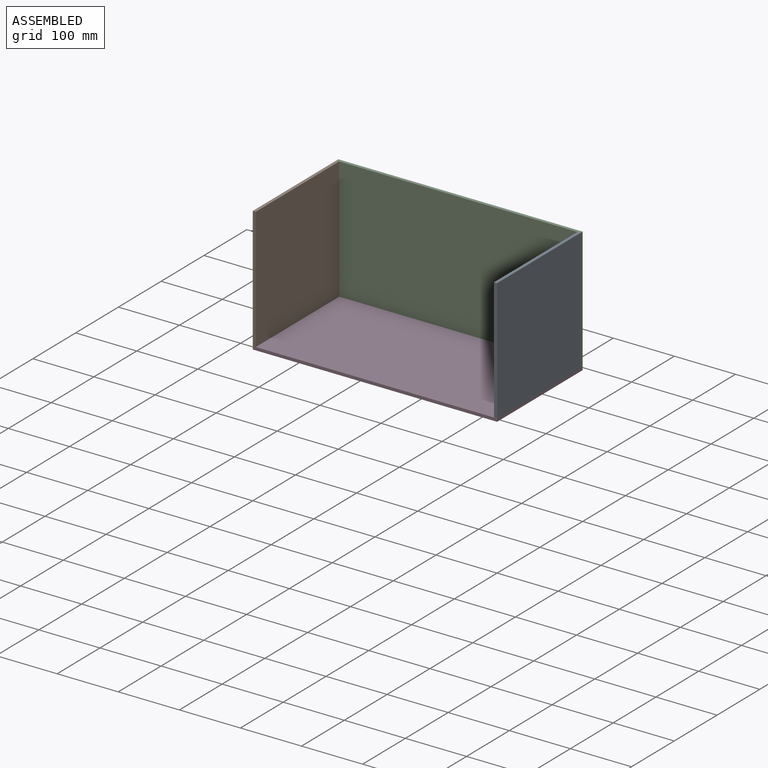
[diagram: assembled view]
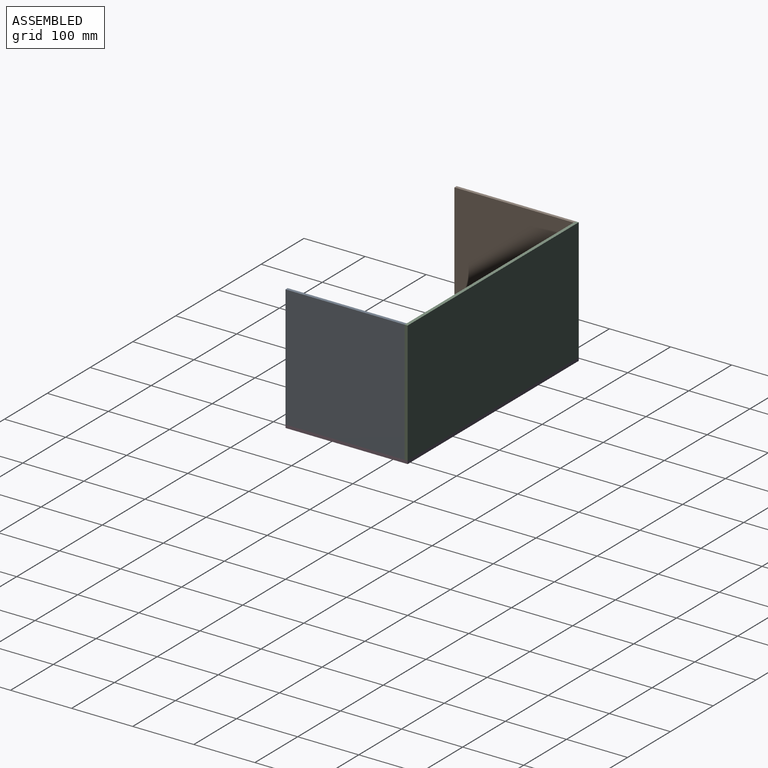
[diagram: assembled view, second angle]
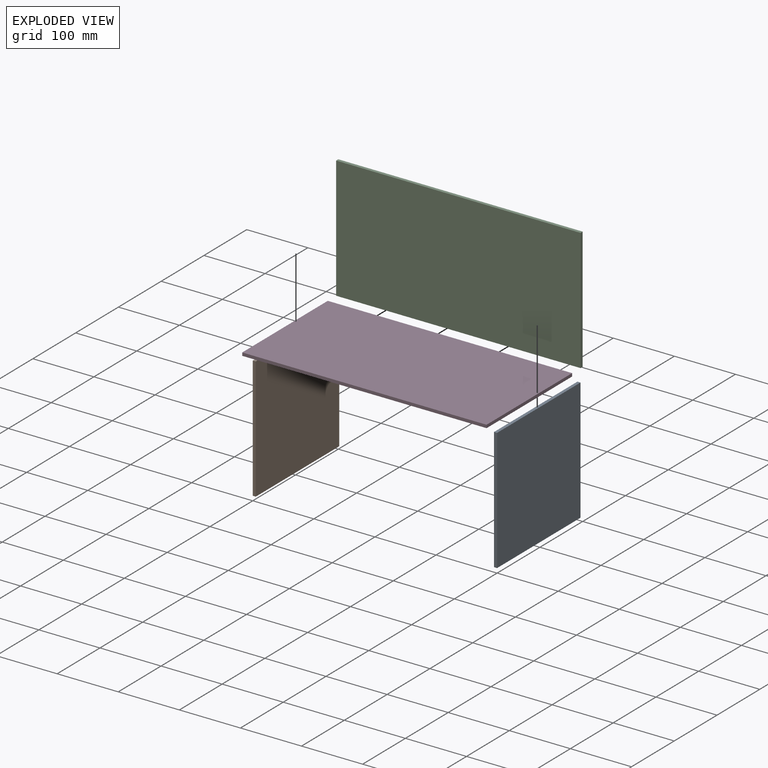
[diagram: exploded view]
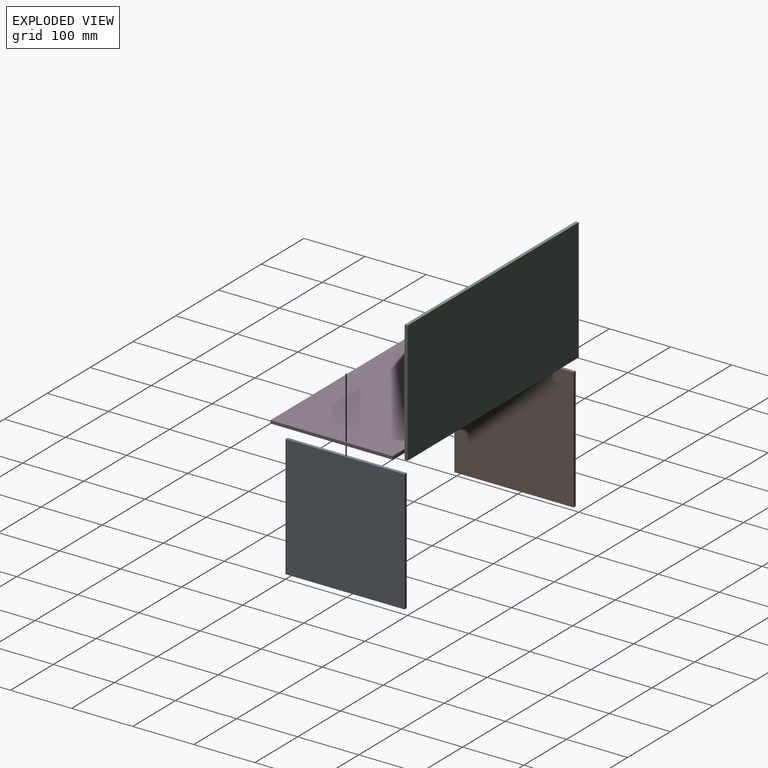
[diagram: exploded view, second angle]
ASSEMBLY  parts=4 mates=3
PART A: 6 faces, bbox 5x195x200 mm
  f0: plane 195x5mm, normal (0,0,-1), area 975mm2, adj f1,f3,f4,f5
  f1: plane 200x5mm, normal (0,1,0), area 1000mm2, adj f0,f2,f4,f5
  f2: plane 195x5mm, normal (0,0,1), area 975mm2, adj f1,f3,f4,f5
  f3: plane 200x5mm, normal (0,-1,0), area 1000mm2, adj f0,f2,f4,f5
  f4: plane 200x195mm, normal (1,0,0), area 39000mm2, adj f0,f1,f2,f3
  f5: plane 200x195mm, normal (-1,0,0), area 39000mm2, adj f0,f1,f2,f3
PART B: same geometry as A
PART C: 6 faces, bbox 400x5x200 mm
  f0: plane 400x5mm, normal (0,0,-1), area 2000mm2, adj f1,f3,f4,f5
  f1: plane 200x5mm, normal (1,0,0), area 1000mm2, adj f0,f2,f4,f5
  f2: plane 400x5mm, normal (0,0,1), area 2000mm2, adj f1,f3,f4,f5
  f3: plane 200x5mm, normal (-1,0,0), area 1000mm2, adj f0,f2,f4,f5
  f4: plane 400x200mm, normal (0,-1,0), area 80000mm2, adj f0,f1,f2,f3
  f5: plane 400x200mm, normal (0,1,0), area 80000mm2, adj f0,f1,f2,f3
PART D: 6 faces, bbox 400x200x5 mm
  f0: plane 200x5mm, normal (1,0,0), area 1000mm2, adj f1,f3,f4,f5
  f1: plane 400x5mm, normal (0,1,0), area 2000mm2, adj f0,f2,f4,f5
  f2: plane 200x5mm, normal (-1,0,0), area 1000mm2, adj f1,f3,f4,f5
  f3: plane 400x5mm, normal (0,-1,0), area 2000mm2, adj f0,f2,f4,f5
  f4: plane 400x200mm, normal (0,0,1), area 80000mm2, adj f0,f1,f2,f3
  f5: plane 400x200mm, normal (0,0,-1), area 80000mm2, adj f0,f1,f2,f3
PLACE A t=(-5,97.5,105)mm
PLACE B t=(-400,97.5,105)mm
PLACE C t=(-200,200,105)mm
PLACE D rot(axis=(1,0,0),180deg) t=(-200,100,5)mm
MATE fastened B.f0 <-> C.f0  axis (0,0,1) through (-400,195,5)mm
MATE fastened A.f0 <-> C.f0  axis (0,0,1) through (0,195,5)mm
MATE fastened C.f5 <-> D.f3  axis (0,1,0) through (0,200,5)mm
